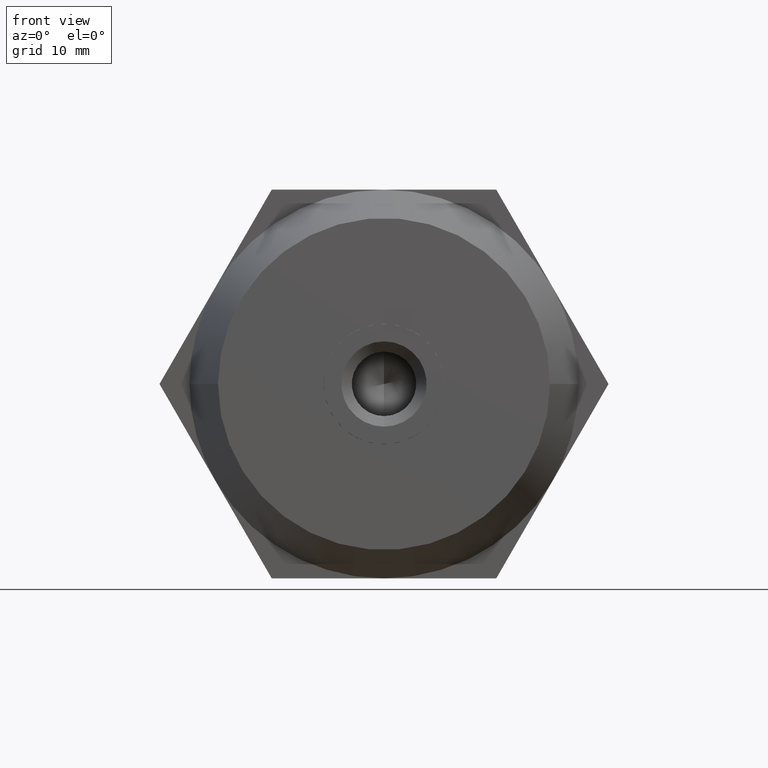
[diagram: clean part render]
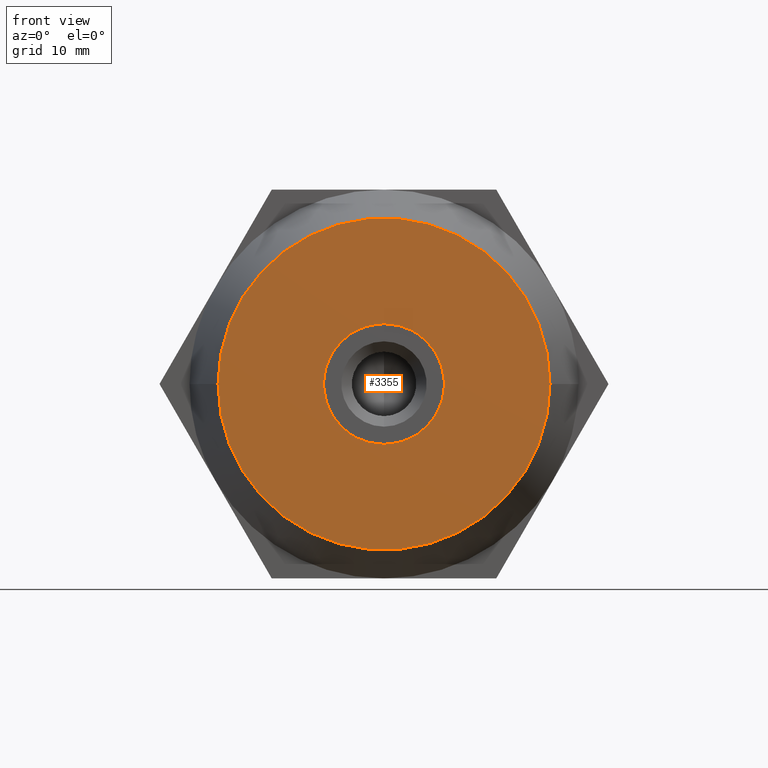
[diagram: same view with one face highlighted and labeled with its STEP entity id]
A machine part, front view. The second image highlights one B-rep face of the part: STEP entity #3355.
In plain terms, the highlighted planar face has unit normal (0, -1, 0).
Its self-contained STEP definition (entity closure, byte-faithful):
#56 = EDGE_CURVE ( 'NONE', #3551, #2474, #256, .T. ) ;
#60 = DIRECTION ( 'NONE',  ( 2.365849761790800100E-016, 2.897330338040634900E-032, -1.000000000000000000 ) ) ;
#71 = CARTESIAN_POINT ( 'NONE',  ( 3.483747469625334800, -22.50000000000000000, 5.321005879331380600 ) ) ;
#94 = VERTEX_POINT ( 'NONE', #449 ) ;
#113 = LINE ( 'NONE', #2521, #3004 ) ;
#120 = DIRECTION ( 'NONE',  ( -1.224646799147353900E-016, 1.000000000000000000, -0.0000000000000000000 ) ) ;
#121 = VERTEX_POINT ( 'NONE', #131 ) ;
#131 = CARTESIAN_POINT ( 'NONE',  ( 2.866252530374665300, -22.50000000000000000, 5.677516748730989900 ) ) ;
#137 = DIRECTION ( 'NONE',  ( -0.8660254037844387100, -1.060575238724905700E-016, 0.4999999999999998900 ) ) ;
#189 = DIRECTION ( 'NONE',  ( -1.224646799147353900E-016, 1.000000000000000000, -0.0000000000000000000 ) ) ;
#192 = CARTESIAN_POINT ( 'NONE',  ( 2.866252530374635100, -22.50000000000000000, -5.677516748731000500 ) ) ;
#246 = EDGE_CURVE ( 'NONE', #121, #3615, #2376, .T. ) ;
#256 = LINE ( 'NONE', #3577, #1411 ) ;
#264 = DIRECTION ( 'NONE',  ( -1.224646799147353900E-016, 1.000000000000000000, -0.0000000000000000000 ) ) ;
#265 = CARTESIAN_POINT ( 'NONE',  ( 2.504373002398440000E-015, -22.50000000000000000, 0.0000000000000000000 ) ) ;
#266 = EDGE_CURVE ( 'NONE', #2945, #3519, #1308, .T. ) ;
#294 = VERTEX_POINT ( 'NONE', #3797 ) ;
#319 = ORIENTED_EDGE ( 'NONE', *, *, #56, .T. ) ;
#344 = CARTESIAN_POINT ( 'NONE',  ( 6.349999999999999600, -22.50000000000000000, -0.3565108693996944500 ) ) ;
#375 = EDGE_CURVE ( 'NONE', #2827, #3551, #1025, .T. ) ;
#414 = CARTESIAN_POINT ( 'NONE',  ( 2.504373002398440000E-015, -22.50000000000000000, 0.0000000000000000000 ) ) ;
#449 = CARTESIAN_POINT ( 'NONE',  ( 3.483747469625369900, -22.50000000000000000, -5.321005879331360200 ) ) ;
#473 = EDGE_LOOP ( 'NONE', ( #1510, #1917 ) ) ;
#484 = ORIENTED_EDGE ( 'NONE', *, *, #3310, .T. ) ;
#586 = AXIS2_PLACEMENT_3D ( 'NONE', #889, #3277, #2361 ) ;
#599 = EDGE_CURVE ( 'NONE', #813, #94, #3155, .T. ) ;
#616 = AXIS2_PLACEMENT_3D ( 'NONE', #1451, #2324, #1733 ) ;
#647 = CARTESIAN_POINT ( 'NONE',  ( -17.50000000000000000, -22.50000000000000000, 0.0000000000000000000 ) ) ;
#775 = VERTEX_POINT ( 'NONE', #1680 ) ;
#801 = CIRCLE ( 'NONE', #3618, 6.360000000000000300 ) ;
#813 = VERTEX_POINT ( 'NONE', #344 ) ;
#842 = DIRECTION ( 'NONE',  ( -1.224646799147353900E-016, 1.000000000000000000, -0.0000000000000000000 ) ) ;
#889 = CARTESIAN_POINT ( 'NONE',  ( 2.504373002398440000E-015, -22.50000000000000000, 0.0000000000000000000 ) ) ;
#959 = DIRECTION ( 'NONE',  ( -0.8660254037844387100, -1.060575238724905700E-016, -0.4999999999999998900 ) ) ;
#963 = CARTESIAN_POINT ( 'NONE',  ( -3.483747469625290400, -22.50000000000000000, -5.321005879331409900 ) ) ;
#968 = EDGE_CURVE ( 'NONE', #3615, #294, #801, .T. ) ;
#976 = ORIENTED_EDGE ( 'NONE', *, *, #246, .T. ) ;
#998 = EDGE_CURVE ( 'NONE', #2474, #2226, #2654, .T. ) ;
#1025 = CIRCLE ( 'NONE', #586, 6.360000000000000300 ) ;
#1159 = DIRECTION ( 'NONE',  ( 1.000000000000000000, 0.0000000000000000000, 0.0000000000000000000 ) ) ;
#1162 = CARTESIAN_POINT ( 'NONE',  ( 2.504373002398440000E-015, -22.50000000000000000, 0.0000000000000000000 ) ) ;
#1177 = DIRECTION ( 'NONE',  ( 1.000000000000000000, 0.0000000000000000000, 0.0000000000000000000 ) ) ;
#1181 = AXIS2_PLACEMENT_3D ( 'NONE', #265, #1816, #2111 ) ;
#1203 = LINE ( 'NONE', #2472, #1621 ) ;
#1206 = CARTESIAN_POINT ( 'NONE',  ( 5.510910596163089600E-015, -22.50000000000000000, 0.0000000000000000000 ) ) ;
#1217 = ORIENTED_EDGE ( 'NONE', *, *, #266, .T. ) ;
#1227 = PLANE ( 'NONE',  #1556 ) ;
#1289 = VECTOR ( 'NONE', #60, 1000.000000000000000 ) ;
#1308 = CIRCLE ( 'NONE', #2096, 6.360000000000000300 ) ;
#1316 = ORIENTED_EDGE ( 'NONE', *, *, #2591, .T. ) ;
#1337 = LINE ( 'NONE', #3567, #3221 ) ;
#1411 = VECTOR ( 'NONE', #3392, 1000.000000000000000 ) ;
#1451 = CARTESIAN_POINT ( 'NONE',  ( 5.510910596163089600E-015, -22.50000000000000000, 0.0000000000000000000 ) ) ;
#1510 = ORIENTED_EDGE ( 'NONE', *, *, #1809, .F. ) ;
#1556 = AXIS2_PLACEMENT_3D ( 'NONE', #647, #3582, #1837 ) ;
#1561 = DIRECTION ( 'NONE',  ( 1.000000000000000000, 0.0000000000000000000, -1.776356839400250500E-015 ) ) ;
#1621 = VECTOR ( 'NONE', #137, 1000.000000000000000 ) ;
#1622 = DIRECTION ( 'NONE',  ( 1.000000000000000000, 0.0000000000000000000, 0.0000000000000000000 ) ) ;
#1656 = CARTESIAN_POINT ( 'NONE',  ( -9.950000000000001100, -22.50000000000000000, 13.07698359714502200 ) ) ;
#1680 = CARTESIAN_POINT ( 'NONE',  ( -17.49999999999999600, -22.50000000000000400, 0.0000000000000000000 ) ) ;
#1704 = DIRECTION ( 'NONE',  ( 0.8660254037844387100, 1.060575238724905700E-016, -0.4999999999999998900 ) ) ;
#1733 = DIRECTION ( 'NONE',  ( -1.000000000000000000, -1.982541115402065400E-016, 0.0000000000000000000 ) ) ;
#1780 = AXIS2_PLACEMENT_3D ( 'NONE', #1206, #2437, #3302 ) ;
#1795 = LINE ( 'NONE', #2709, #1289 ) ;
#1809 = EDGE_CURVE ( 'NONE', #775, #3116, #2366, .T. ) ;
#1816 = DIRECTION ( 'NONE',  ( -1.224646799147353900E-016, 1.000000000000000000, -0.0000000000000000000 ) ) ;
#1837 = DIRECTION ( 'NONE',  ( 1.000000000000000000, 1.224646799147353900E-016, 0.0000000000000000000 ) ) ;
#1867 = VECTOR ( 'NONE', #1704, 1000.000000000000000 ) ;
#1897 = CARTESIAN_POINT ( 'NONE',  ( 2.504373002398440000E-015, -22.50000000000000000, 0.0000000000000000000 ) ) ;
#1917 = ORIENTED_EDGE ( 'NONE', *, *, #3022, .F. ) ;
#1945 = ORIENTED_EDGE ( 'NONE', *, *, #998, .T. ) ;
#1990 = CARTESIAN_POINT ( 'NONE',  ( 17.50000000000000700, -22.49999999999999600, 2.326828918379971400E-015 ) ) ;
#2087 = EDGE_CURVE ( 'NONE', #3519, #2827, #1203, .T. ) ;
#2096 = AXIS2_PLACEMENT_3D ( 'NONE', #2936, #264, #1159 ) ;
#2104 = CARTESIAN_POINT ( 'NONE',  ( -6.349999999999999600, -22.50000000000000000, -0.3565108693995489600 ) ) ;
#2111 = DIRECTION ( 'NONE',  ( 1.000000000000000000, 0.0000000000000000000, 0.0000000000000000000 ) ) ;
#2159 = EDGE_CURVE ( 'NONE', #2226, #3119, #113, .T. ) ;
#2226 = VERTEX_POINT ( 'NONE', #2502 ) ;
#2231 = ORIENTED_EDGE ( 'NONE', *, *, #2159, .T. ) ;
#2324 = DIRECTION ( 'NONE',  ( -1.224646799147353900E-016, 1.000000000000000000, 0.0000000000000000000 ) ) ;
#2338 = AXIS2_PLACEMENT_3D ( 'NONE', #1897, #120, #1561 ) ;
#2361 = DIRECTION ( 'NONE',  ( 1.000000000000000000, 0.0000000000000000000, 0.0000000000000000000 ) ) ;
#2366 = CIRCLE ( 'NONE', #616, 17.50000000000000000 ) ;
#2376 = LINE ( 'NONE', #1656, #1867 ) ;
#2412 = ORIENTED_EDGE ( 'NONE', *, *, #599, .T. ) ;
#2437 = DIRECTION ( 'NONE',  ( -1.224646799147353900E-016, 1.000000000000000000, 0.0000000000000000000 ) ) ;
#2472 = CARTESIAN_POINT ( 'NONE',  ( -16.29999999999999700, -22.50000000000000000, 2.078460969082649900 ) ) ;
#2474 = VERTEX_POINT ( 'NONE', #3307 ) ;
#2502 = CARTESIAN_POINT ( 'NONE',  ( -3.483747469625334800, -22.50000000000000000, 5.321005879331380600 ) ) ;
#2518 = EDGE_CURVE ( 'NONE', #294, #813, #1795, .T. ) ;
#2521 = CARTESIAN_POINT ( 'NONE',  ( -16.29999999999999700, -22.50000000000000000, -2.078460969082654800 ) ) ;
#2561 = EDGE_LOOP ( 'NONE', ( #976, #3416, #2824, #2412, #484, #1217, #3204, #2658, #319, #1945, #2231, #1316 ) ) ;
#2591 = EDGE_CURVE ( 'NONE', #3119, #121, #3591, .T. ) ;
#2642 = FACE_BOUND ( 'NONE', #2561, .T. ) ;
#2654 = CIRCLE ( 'NONE', #1181, 6.360000000000000300 ) ;
#2658 = ORIENTED_EDGE ( 'NONE', *, *, #375, .T. ) ;
#2707 = CARTESIAN_POINT ( 'NONE',  ( -2.866252530374705300, -22.50000000000000000, -5.677516748730970300 ) ) ;
#2709 = CARTESIAN_POINT ( 'NONE',  ( 6.349999999999999600, -22.50000000000000000, 5.642551681871059600E-015 ) ) ;
#2803 = DIRECTION ( 'NONE',  ( 0.8660254037844387100, 1.060575238724905700E-016, 0.4999999999999998900 ) ) ;
#2824 = ORIENTED_EDGE ( 'NONE', *, *, #2518, .T. ) ;
#2827 = VERTEX_POINT ( 'NONE', #963 ) ;
#2920 = FACE_OUTER_BOUND ( 'NONE', #473, .T. ) ;
#2936 = CARTESIAN_POINT ( 'NONE',  ( 2.504373002398440000E-015, -22.50000000000000000, 0.0000000000000000000 ) ) ;
#2945 = VERTEX_POINT ( 'NONE', #192 ) ;
#3004 = VECTOR ( 'NONE', #2803, 1000.000000000000000 ) ;
#3022 = EDGE_CURVE ( 'NONE', #3116, #775, #3263, .T. ) ;
#3116 = VERTEX_POINT ( 'NONE', #1990 ) ;
#3119 = VERTEX_POINT ( 'NONE', #3766 ) ;
#3155 = CIRCLE ( 'NONE', #3274, 6.360000000000000300 ) ;
#3204 = ORIENTED_EDGE ( 'NONE', *, *, #2087, .T. ) ;
#3221 = VECTOR ( 'NONE', #959, 1000.000000000000000 ) ;
#3263 = CIRCLE ( 'NONE', #1780, 17.50000000000000000 ) ;
#3274 = AXIS2_PLACEMENT_3D ( 'NONE', #414, #189, #1622 ) ;
#3277 = DIRECTION ( 'NONE',  ( -1.224646799147353900E-016, 1.000000000000000000, -0.0000000000000000000 ) ) ;
#3302 = DIRECTION ( 'NONE',  ( -1.000000000000000000, -1.982541115402065400E-016, 0.0000000000000000000 ) ) ;
#3307 = CARTESIAN_POINT ( 'NONE',  ( -6.349999999999999600, -22.50000000000000000, 0.3565108693995460200 ) ) ;
#3310 = EDGE_CURVE ( 'NONE', #94, #2945, #1337, .T. ) ;
#3355 = ADVANCED_FACE ( 'NONE', ( #2920, #2642 ), #1227, .T. ) ;
#3392 = DIRECTION ( 'NONE',  ( -2.365849761790805000E-016, -2.897330338040634900E-032, 1.000000000000000000 ) ) ;
#3416 = ORIENTED_EDGE ( 'NONE', *, *, #968, .T. ) ;
#3519 = VERTEX_POINT ( 'NONE', #2707 ) ;
#3551 = VERTEX_POINT ( 'NONE', #2104 ) ;
#3567 = CARTESIAN_POINT ( 'NONE',  ( -9.950000000000001100, -22.50000000000000000, -13.07698359714502200 ) ) ;
#3577 = CARTESIAN_POINT ( 'NONE',  ( -6.349999999999999600, -22.50000000000000000, 2.637922484396745100E-015 ) ) ;
#3582 = DIRECTION ( 'NONE',  ( 1.224646799147353900E-016, -1.000000000000000000, 0.0000000000000000000 ) ) ;
#3591 = CIRCLE ( 'NONE', #2338, 6.360000000000000300 ) ;
#3615 = VERTEX_POINT ( 'NONE', #71 ) ;
#3618 = AXIS2_PLACEMENT_3D ( 'NONE', #1162, #842, #1177 ) ;
#3766 = CARTESIAN_POINT ( 'NONE',  ( -2.866252530374665300, -22.50000000000000000, 5.677516748730989900 ) ) ;
#3797 = CARTESIAN_POINT ( 'NONE',  ( 6.349999999999999600, -22.50000000000000000, 0.3565108693996724700 ) ) ;